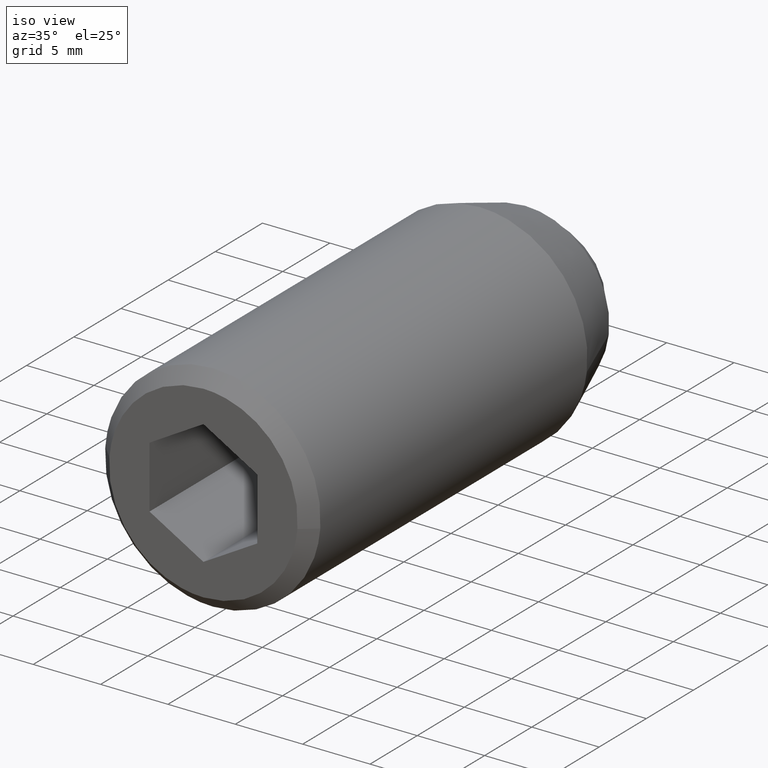
[diagram: clean part render]
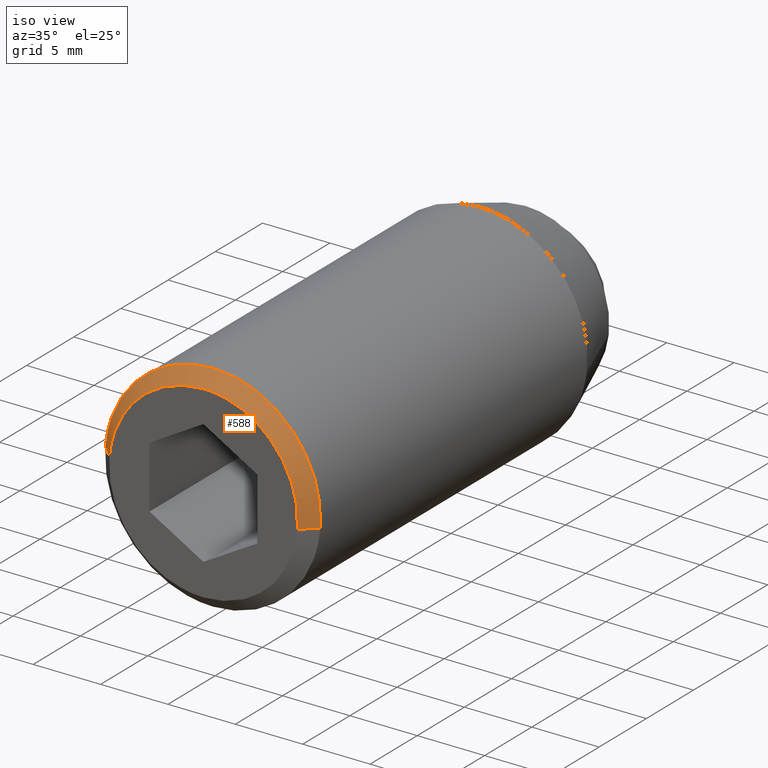
[diagram: same view with one face highlighted and labeled with its STEP entity id]
A machine part, iso view. The second image highlights one B-rep face of the part: STEP entity #588.
In plain terms, the highlighted face is a freeform B-spline surface patch.
Its self-contained STEP definition (entity closure, byte-faithful):
#353=CARTESIAN_POINT('',(-7.975338585537228,-33.100000089765423,0.627672693204310));
#354=VERTEX_POINT('',#353);
#368=CARTESIAN_POINT('',(0.0,-33.099999999999987,7.999999999999998));
#369=VERTEX_POINT('',#368);
#370=CARTESIAN_POINT('',(0.0,-33.099999999999987,7.999999999999998));
#371=CARTESIAN_POINT('',(-7.395124055251427,-33.099999999999994,7.999999999999999));
#372=CARTESIAN_POINT('',(-7.975338585537228,-33.100000089765416,0.627672693204310));
#380=(BOUNDED_CURVE()B_SPLINE_CURVE(2,(#370,#371,#372),.UNSPECIFIED.,.F.,.U.)B_SPLINE_CURVE_WITH_KNOTS((3,3),(0.500000000000000,0.736331303451771),.UNSPECIFIED.)CURVE()GEOMETRIC_REPRESENTATION_ITEM()RATIONAL_B_SPLINE_CURVE((1.0,0.723120655302528,0.969723362054862))REPRESENTATION_ITEM(''));
#381=EDGE_CURVE('',#369,#354,#380,.T.);
#383=CARTESIAN_POINT('',(7.975338585537230,-33.100000089765409,-0.627672693204314));
#384=VERTEX_POINT('',#383);
#385=CARTESIAN_POINT('',(7.975338585537230,-33.100000089765409,-0.627672693204314));
#386=CARTESIAN_POINT('',(8.0,-33.099999999999994,-0.314320790181507));
#387=CARTESIAN_POINT('',(8.0,-33.099999999999987,-1.291960E-015));
#388=CARTESIAN_POINT('',(8.0,-33.099999999999994,7.999999999999999));
#389=CARTESIAN_POINT('',(0.0,-33.099999999999987,7.999999999999998));
#397=(BOUNDED_CURVE()B_SPLINE_CURVE(2,(#385,#386,#387,#388,#389),.UNSPECIFIED.,.F.,.U.)B_SPLINE_CURVE_WITH_KNOTS((3,2,3),(0.236331303451770,0.250000000000000,0.500000000000000),.UNSPECIFIED.)CURVE()GEOMETRIC_REPRESENTATION_ITEM()RATIONAL_B_SPLINE_CURVE((0.969723362054860,0.983986125884019,1.0,0.707106781186548,1.0))REPRESENTATION_ITEM(''));
#398=EDGE_CURVE('',#384,#369,#397,.T.);
#484=CARTESIAN_POINT('',(6.978421336134765,-34.099999999992761,-0.549213670150708));
#485=VERTEX_POINT('',#484);
#486=CARTESIAN_POINT('',(6.978421336134765,-34.099999999992761,-0.549213670150708));
#487=CARTESIAN_POINT('',(7.975338585537230,-33.100000089765409,-0.627672693204314));
#488=QUASI_UNIFORM_CURVE('',1,(#486,#487),.UNSPECIFIED.,.F.,.U.);
#489=EDGE_CURVE('',#485,#384,#488,.T.);
#506=CARTESIAN_POINT('',(-6.978421336134765,-34.099999999992761,0.549213670150704));
#507=VERTEX_POINT('',#506);
#523=CARTESIAN_POINT('',(-6.978421336134765,-34.099999999992761,0.549213670150704));
#524=CARTESIAN_POINT('',(-7.975338585537228,-33.100000089765423,0.627672693204310));
#525=QUASI_UNIFORM_CURVE('',1,(#523,#524),.UNSPECIFIED.,.F.,.U.);
#526=EDGE_CURVE('',#507,#354,#525,.T.);
#534=CARTESIAN_POINT('',(-6.953498402788556,-34.125000000000007,0.547252192701721));
#535=CARTESIAN_POINT('',(-6.406246210086835,-34.125000000000007,7.500750595490277));
#536=CARTESIAN_POINT('',(0.547252192701722,-34.125000000000007,6.953498402788555));
#537=CARTESIAN_POINT('',(7.500750595490278,-34.125000000000007,6.406246210086834));
#538=CARTESIAN_POINT('',(6.953498402788556,-34.125000000000007,-0.547252192701723));
#539=CARTESIAN_POINT('',(-8.000884676541931,-33.074374999999989,0.629683280150789));
#540=CARTESIAN_POINT('',(-7.371201396391141,-33.074374999999989,8.630567956692721));
#541=CARTESIAN_POINT('',(0.629683280150790,-33.074374999999989,8.000884676541929));
#542=CARTESIAN_POINT('',(8.630567956692721,-33.074374999999989,7.371201396391141));
#543=CARTESIAN_POINT('',(8.000884676541931,-33.074374999999989,-0.629683280150792));
#551=(BOUNDED_SURFACE()B_SPLINE_SURFACE(2,1,((#534,#539),(#535,#540),(#536,#541),(#537,#542),(#538,#543)),.UNSPECIFIED.,.F.,.F.,.U.)B_SPLINE_SURFACE_WITH_KNOTS((3,2,3),(2,2),(0.0,13.297290886082280,26.594581772164560),(0.0,1.0),.UNSPECIFIED.)GEOMETRIC_REPRESENTATION_ITEM()RATIONAL_B_SPLINE_SURFACE(((1.0,1.0),(0.707106781186548,0.707106781186548),(1.0,1.0),(0.707106781186548,0.707106781186548),(1.0,1.0)))REPRESENTATION_ITEM('')SURFACE());
#552=ORIENTED_EDGE('',*,*,#398,.T.);
#553=ORIENTED_EDGE('',*,*,#381,.T.);
#554=ORIENTED_EDGE('',*,*,#526,.F.);
#555=CARTESIAN_POINT('',(0.0,-34.100000000000001,6.999999999999999));
#556=VERTEX_POINT('',#555);
#557=CARTESIAN_POINT('',(0.0,-34.100000000000001,6.999999999999999));
#558=CARTESIAN_POINT('',(-6.470733441504764,-34.100000000000001,7.0));
#559=CARTESIAN_POINT('',(-6.978421336134765,-34.099999999992761,0.549213670150704));
#567=(BOUNDED_CURVE()B_SPLINE_CURVE(2,(#557,#558,#559),.UNSPECIFIED.,.F.,.U.)B_SPLINE_CURVE_WITH_KNOTS((3,3),(0.500000000000000,0.736331300630055),.UNSPECIFIED.)CURVE()GEOMETRIC_REPRESENTATION_ITEM()RATIONAL_B_SPLINE_CURVE((1.0,0.723120658608374,0.969723356166156))REPRESENTATION_ITEM(''));
#568=EDGE_CURVE('',#556,#507,#567,.T.);
#569=ORIENTED_EDGE('',*,*,#568,.F.);
#570=CARTESIAN_POINT('',(6.978421336134765,-34.099999999992761,-0.549213670150708));
#571=CARTESIAN_POINT('',(7.0,-34.100000000000001,-0.275030749109167));
#572=CARTESIAN_POINT('',(7.0,-34.100000000000001,-1.291960E-015));
#573=CARTESIAN_POINT('',(6.999999999999999,-34.100000000000001,6.999999999999999));
#574=CARTESIAN_POINT('',(0.0,-34.100000000000001,6.999999999999999));
#582=(BOUNDED_CURVE()B_SPLINE_CURVE(2,(#570,#571,#572,#573,#574),.UNSPECIFIED.,.F.,.U.)B_SPLINE_CURVE_WITH_KNOTS((3,2,3),(0.236331300630054,0.250000000000000,0.500000000000000),.UNSPECIFIED.)CURVE()GEOMETRIC_REPRESENTATION_ITEM()RATIONAL_B_SPLINE_CURVE((0.969723356166153,0.983986122578172,1.0,0.707106781186547,1.0))REPRESENTATION_ITEM(''));
#583=EDGE_CURVE('',#485,#556,#582,.T.);
#584=ORIENTED_EDGE('',*,*,#583,.F.);
#585=ORIENTED_EDGE('',*,*,#489,.T.);
#586=EDGE_LOOP('',(#552,#553,#554,#569,#584,#585));
#587=FACE_OUTER_BOUND('',#586,.T.);
#588=ADVANCED_FACE('',(#587),#551,.T.);